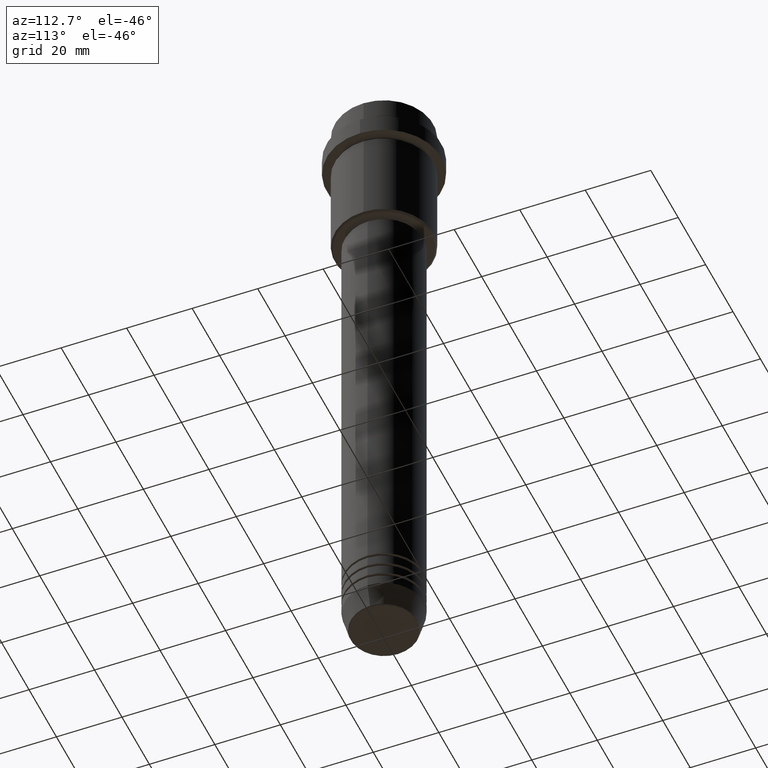
[diagram: clean part render]
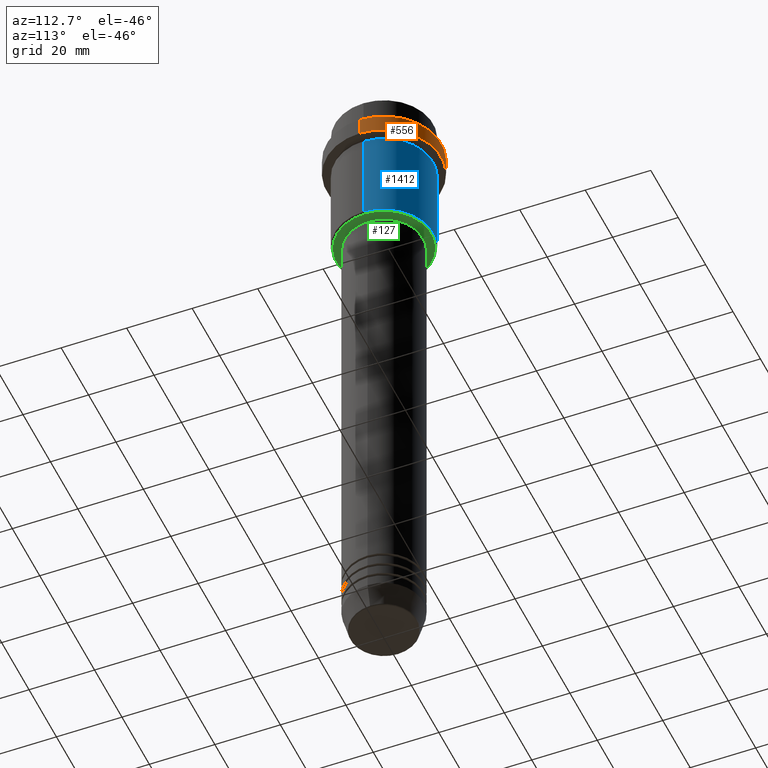
[diagram: same view with three faces highlighted in distinct colors, each labeled with its STEP entity id]
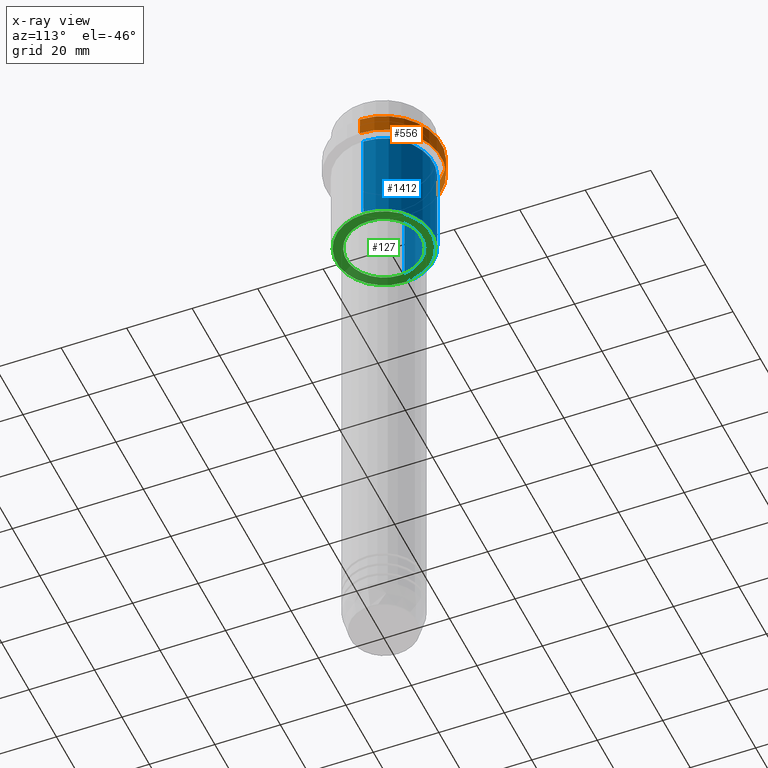
[diagram: x-ray of the same camera — body ghosted, the three highlighted faces saturated]
A machine part, auxiliary view with three faces highlighted in distinct colors.
The next image is the same camera in x-ray (body ghosted, the three faces saturated) — at least one of them is partly hidden behind the body in this view.
Their STEP definitions:

[orange] entity #556 — the highlighted cylindrical surface (partial cylindrical patch) has radius 17.5 mm, axis along (-0, -0, 1).
#19 = LINE ( 'NONE', #340, #771 ) ;
#111 = EDGE_LOOP ( 'NONE', ( #1229, #1236, #664, #850 ) ) ;
#122 = CIRCLE ( 'NONE', #985, 17.50000000000000000 ) ;
#138 = CARTESIAN_POINT ( 'NONE',  ( 0.000000000000000000, 0.000000000000000000, -9.500000000000001776 ) ) ;
#164 = DIRECTION ( 'NONE',  ( -0.000000000000000000, -0.000000000000000000, 1.000000000000000000 ) ) ;
#177 = LINE ( 'NONE', #1264, #1371 ) ;
#220 = CIRCLE ( 'NONE', #408, 17.50000000000000000 ) ;
#225 = CARTESIAN_POINT ( 'NONE',  ( 0.000000000000000000, 0.000000000000000000, 0.000000000000000000 ) ) ;
#282 = DIRECTION ( 'NONE',  ( -0.000000000000000000, -0.000000000000000000, 1.000000000000000000 ) ) ;
#286 = EDGE_CURVE ( 'NONE', #1340, #683, #177, .T. ) ;
#290 = CARTESIAN_POINT ( 'NONE',  ( -17.50000000000000000, 2.143131898507868248E-15, -15.00000000000000178 ) ) ;
#340 = CARTESIAN_POINT ( 'NONE',  ( 17.50000000000000000, 0.000000000000000000, 0.000000000000000000 ) ) ;
#408 = AXIS2_PLACEMENT_3D ( 'NONE', #138, #665, #921 ) ;
#434 = AXIS2_PLACEMENT_3D ( 'NONE', #225, #906, #1003 ) ;
#556 = ADVANCED_FACE ( 'NONE', ( #1000 ), #785, .T. ) ;
#619 = DIRECTION ( 'NONE',  ( 1.000000000000000000, 0.000000000000000000, 0.000000000000000000 ) ) ;
#664 = ORIENTED_EDGE ( 'NONE', *, *, #1139, .T. ) ;
#665 = DIRECTION ( 'NONE',  ( 0.000000000000000000, 0.000000000000000000, -1.000000000000000000 ) ) ;
#683 = VERTEX_POINT ( 'NONE', #1361 ) ;
#701 = VERTEX_POINT ( 'NONE', #1248 ) ;
#771 = VECTOR ( 'NONE', #783, 1000.000000000000000 ) ;
#783 = DIRECTION ( 'NONE',  ( -0.000000000000000000, -0.000000000000000000, 1.000000000000000000 ) ) ;
#785 = CYLINDRICAL_SURFACE ( 'NONE', #434, 17.50000000000000000 ) ;
#850 = ORIENTED_EDGE ( 'NONE', *, *, #925, .F. ) ;
#906 = DIRECTION ( 'NONE',  ( -0.000000000000000000, -0.000000000000000000, 1.000000000000000000 ) ) ;
#921 = DIRECTION ( 'NONE',  ( 1.000000000000000000, 0.000000000000000000, 0.000000000000000000 ) ) ;
#925 = EDGE_CURVE ( 'NONE', #1165, #701, #19, .T. ) ;
#958 = CARTESIAN_POINT ( 'NONE',  ( 0.000000000000000000, 0.000000000000000000, -15.00000000000000178 ) ) ;
#985 = AXIS2_PLACEMENT_3D ( 'NONE', #958, #164, #619 ) ;
#1000 = FACE_OUTER_BOUND ( 'NONE', #111, .T. ) ;
#1003 = DIRECTION ( 'NONE',  ( 1.000000000000000000, 0.000000000000000000, 0.000000000000000000 ) ) ;
#1139 = EDGE_CURVE ( 'NONE', #683, #701, #220, .T. ) ;
#1165 = VERTEX_POINT ( 'NONE', #1354 ) ;
#1225 = EDGE_CURVE ( 'NONE', #1165, #1340, #122, .T. ) ;
#1229 = ORIENTED_EDGE ( 'NONE', *, *, #1225, .T. ) ;
#1236 = ORIENTED_EDGE ( 'NONE', *, *, #286, .T. ) ;
#1248 = CARTESIAN_POINT ( 'NONE',  ( 17.50000000000000000, 0.000000000000000000, -9.500000000000001776 ) ) ;
#1264 = CARTESIAN_POINT ( 'NONE',  ( -17.50000000000000000, 2.143131898507868248E-15, 0.000000000000000000 ) ) ;
#1340 = VERTEX_POINT ( 'NONE', #290 ) ;
#1354 = CARTESIAN_POINT ( 'NONE',  ( 17.50000000000000000, 0.000000000000000000, -15.00000000000000178 ) ) ;
#1361 = CARTESIAN_POINT ( 'NONE',  ( -17.50000000000000000, 2.143131898507868248E-15, -9.500000000000001776 ) ) ;
#1371 = VECTOR ( 'NONE', #282, 1000.000000000000000 ) ;

[blue] entity #1412 — the highlighted cylindrical surface (partial cylindrical patch) has radius 15 mm, axis along (-0, -0, 1).
#2 = CARTESIAN_POINT ( 'NONE',  ( -15.00000000000000000, 1.836970198721029589E-15, -44.50000000000000711 ) ) ;
#23 = DIRECTION ( 'NONE',  ( 1.000000000000000000, 0.000000000000000000, 0.000000000000000000 ) ) ;
#151 = CARTESIAN_POINT ( 'NONE',  ( 15.00000000000000000, 0.000000000000000000, 0.000000000000000000 ) ) ;
#270 = VECTOR ( 'NONE', #1087, 1000.000000000000000 ) ;
#330 = CARTESIAN_POINT ( 'NONE',  ( -15.00000000000000000, 1.836970198721029589E-15, 0.000000000000000000 ) ) ;
#341 = DIRECTION ( 'NONE',  ( -0.000000000000000000, -0.000000000000000000, 1.000000000000000000 ) ) ;
#351 = DIRECTION ( 'NONE',  ( -0.000000000000000000, -0.000000000000000000, 1.000000000000000000 ) ) ;
#386 = DIRECTION ( 'NONE',  ( -0.000000000000000000, -0.000000000000000000, 1.000000000000000000 ) ) ;
#399 = DIRECTION ( 'NONE',  ( -1.000000000000000000, 0.000000000000000000, 0.000000000000000000 ) ) ;
#445 = VERTEX_POINT ( 'NONE', #2 ) ;
#468 = FACE_OUTER_BOUND ( 'NONE', #703, .T. ) ;
#538 = EDGE_CURVE ( 'NONE', #555, #750, #1195, .T. ) ;
#555 = VERTEX_POINT ( 'NONE', #586 ) ;
#559 = CARTESIAN_POINT ( 'NONE',  ( 15.00000000000000000, 0.000000000000000000, -44.50000000000000711 ) ) ;
#569 = LINE ( 'NONE', #151, #1102 ) ;
#575 = AXIS2_PLACEMENT_3D ( 'NONE', #1217, #341, #698 ) ;
#585 = DIRECTION ( 'NONE',  ( -0.000000000000000000, -0.000000000000000000, 1.000000000000000000 ) ) ;
#586 = CARTESIAN_POINT ( 'NONE',  ( 15.00000000000000178, 0.000000000000000000, -16.00000000000000000 ) ) ;
#672 = ORIENTED_EDGE ( 'NONE', *, *, #679, .T. ) ;
#679 = EDGE_CURVE ( 'NONE', #889, #445, #718, .T. ) ;
#698 = DIRECTION ( 'NONE',  ( 1.000000000000000000, 0.000000000000000000, 0.000000000000000000 ) ) ;
#703 = EDGE_LOOP ( 'NONE', ( #672, #735, #860, #1364 ) ) ;
#718 = CIRCLE ( 'NONE', #989, 15.00000000000000000 ) ;
#735 = ORIENTED_EDGE ( 'NONE', *, *, #1397, .T. ) ;
#750 = VERTEX_POINT ( 'NONE', #1386 ) ;
#821 = CARTESIAN_POINT ( 'NONE',  ( 0.000000000000000000, 0.000000000000000000, -44.50000000000000711 ) ) ;
#860 = ORIENTED_EDGE ( 'NONE', *, *, #538, .F. ) ;
#889 = VERTEX_POINT ( 'NONE', #559 ) ;
#989 = AXIS2_PLACEMENT_3D ( 'NONE', #821, #386, #399 ) ;
#1087 = DIRECTION ( 'NONE',  ( -0.000000000000000000, -0.000000000000000000, 1.000000000000000000 ) ) ;
#1102 = VECTOR ( 'NONE', #351, 1000.000000000000000 ) ;
#1122 = CARTESIAN_POINT ( 'NONE',  ( 0.000000000000000000, 0.000000000000000000, 0.000000000000000000 ) ) ;
#1190 = EDGE_CURVE ( 'NONE', #889, #555, #569, .T. ) ;
#1195 = CIRCLE ( 'NONE', #575, 15.00000000000000178 ) ;
#1205 = LINE ( 'NONE', #330, #270 ) ;
#1217 = CARTESIAN_POINT ( 'NONE',  ( 0.000000000000000000, 0.000000000000000000, -16.00000000000000000 ) ) ;
#1256 = AXIS2_PLACEMENT_3D ( 'NONE', #1122, #585, #23 ) ;
#1348 = CYLINDRICAL_SURFACE ( 'NONE', #1256, 15.00000000000000000 ) ;
#1364 = ORIENTED_EDGE ( 'NONE', *, *, #1190, .F. ) ;
#1386 = CARTESIAN_POINT ( 'NONE',  ( -15.00000000000000355, 1.836970198721029983E-15, -16.00000000000000000 ) ) ;
#1397 = EDGE_CURVE ( 'NONE', #445, #750, #1205, .T. ) ;
#1412 = ADVANCED_FACE ( 'NONE', ( #468 ), #1348, .T. ) ;

[green] entity #127 — the highlighted planar face has unit normal (0, 0, -1).
#14 = CARTESIAN_POINT ( 'NONE',  ( -14.50000000000001066, 1.806354028742346591E-15, -45.00000000000002132 ) ) ;
#25 = EDGE_CURVE ( 'NONE', #768, #945, #1164, .T. ) ;
#33 = EDGE_CURVE ( 'NONE', #945, #768, #716, .T. ) ;
#38 = DIRECTION ( 'NONE',  ( -0.000000000000000000, -0.000000000000000000, 1.000000000000000000 ) ) ;
#90 = EDGE_LOOP ( 'NONE', ( #650, #759 ) ) ;
#104 = CIRCLE ( 'NONE', #1196, 14.50000000000001066 ) ;
#127 = ADVANCED_FACE ( 'NONE', ( #868, #407 ), #1054, .T. ) ;
#160 = DIRECTION ( 'NONE',  ( -1.000000000000000000, 0.000000000000000000, 0.000000000000000000 ) ) ;
#205 = CARTESIAN_POINT ( 'NONE',  ( -11.49999999999999467, 1.408343819019455781E-15, -45.00000000000002132 ) ) ;
#308 = CARTESIAN_POINT ( 'NONE',  ( 0.000000000000000000, 15.00000000000000000, -45.00000000000002132 ) ) ;
#319 = AXIS2_PLACEMENT_3D ( 'NONE', #656, #964, #549 ) ;
#336 = CARTESIAN_POINT ( 'NONE',  ( 11.49999999999999467, 0.000000000000000000, -45.00000000000002132 ) ) ;
#407 = FACE_BOUND ( 'NONE', #499, .T. ) ;
#499 = EDGE_LOOP ( 'NONE', ( #1280, #1258 ) ) ;
#549 = DIRECTION ( 'NONE',  ( -1.000000000000000000, 0.000000000000000000, 0.000000000000000000 ) ) ;
#580 = DIRECTION ( 'NONE',  ( -0.000000000000000000, -0.000000000000000000, 1.000000000000000000 ) ) ;
#583 = VERTEX_POINT ( 'NONE', #14 ) ;
#587 = CARTESIAN_POINT ( 'NONE',  ( 0.000000000000000000, 0.000000000000000000, -45.00000000000002132 ) ) ;
#599 = AXIS2_PLACEMENT_3D ( 'NONE', #1131, #580, #1013 ) ;
#650 = ORIENTED_EDGE ( 'NONE', *, *, #991, .T. ) ;
#656 = CARTESIAN_POINT ( 'NONE',  ( 0.000000000000000000, 0.000000000000000000, -45.00000000000002132 ) ) ;
#716 = CIRCLE ( 'NONE', #599, 11.49999999999999467 ) ;
#725 = CARTESIAN_POINT ( 'NONE',  ( 0.000000000000000000, 0.000000000000000000, -45.00000000000002132 ) ) ;
#759 = ORIENTED_EDGE ( 'NONE', *, *, #1023, .T. ) ;
#768 = VERTEX_POINT ( 'NONE', #336 ) ;
#868 = FACE_OUTER_BOUND ( 'NONE', #90, .T. ) ;
#907 = DIRECTION ( 'NONE',  ( 1.000000000000000000, 0.000000000000000000, 0.000000000000000000 ) ) ;
#908 = CARTESIAN_POINT ( 'NONE',  ( 14.50000000000001066, 0.000000000000000000, -45.00000000000002132 ) ) ;
#945 = VERTEX_POINT ( 'NONE', #205 ) ;
#956 = DIRECTION ( 'NONE',  ( -1.000000000000000000, 0.000000000000000000, -0.000000000000000000 ) ) ;
#964 = DIRECTION ( 'NONE',  ( 0.000000000000000000, 0.000000000000000000, -1.000000000000000000 ) ) ;
#991 = EDGE_CURVE ( 'NONE', #1186, #583, #104, .T. ) ;
#1013 = DIRECTION ( 'NONE',  ( 1.000000000000000000, 0.000000000000000000, 0.000000000000000000 ) ) ;
#1023 = EDGE_CURVE ( 'NONE', #583, #1186, #1101, .T. ) ;
#1028 = AXIS2_PLACEMENT_3D ( 'NONE', #587, #38, #907 ) ;
#1054 = PLANE ( 'NONE',  #1309 ) ;
#1101 = CIRCLE ( 'NONE', #319, 14.50000000000001066 ) ;
#1131 = CARTESIAN_POINT ( 'NONE',  ( 0.000000000000000000, 0.000000000000000000, -45.00000000000002132 ) ) ;
#1154 = DIRECTION ( 'NONE',  ( 0.000000000000000000, 0.000000000000000000, -1.000000000000000000 ) ) ;
#1164 = CIRCLE ( 'NONE', #1028, 11.49999999999999467 ) ;
#1186 = VERTEX_POINT ( 'NONE', #908 ) ;
#1196 = AXIS2_PLACEMENT_3D ( 'NONE', #725, #1154, #160 ) ;
#1258 = ORIENTED_EDGE ( 'NONE', *, *, #33, .T. ) ;
#1280 = ORIENTED_EDGE ( 'NONE', *, *, #25, .T. ) ;
#1309 = AXIS2_PLACEMENT_3D ( 'NONE', #308, #1380, #956 ) ;
#1380 = DIRECTION ( 'NONE',  ( 0.000000000000000000, 0.000000000000000000, -1.000000000000000000 ) ) ;